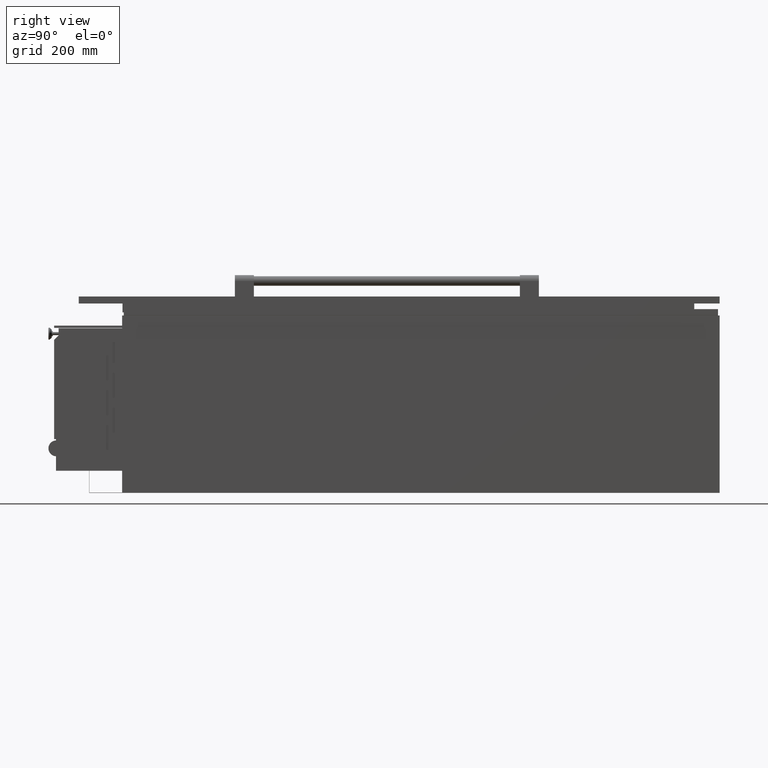
[diagram: clean part render]
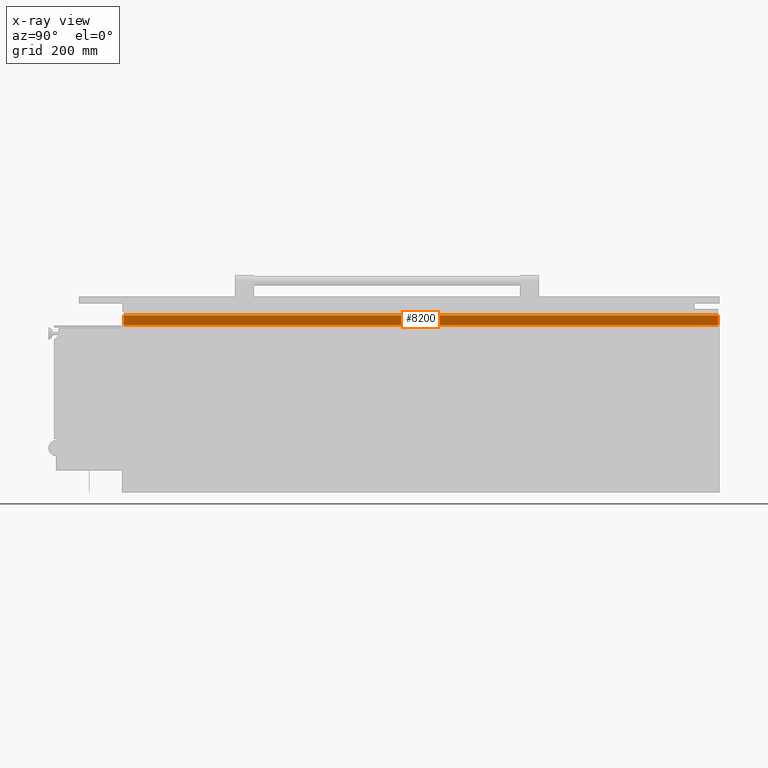
[diagram: x-ray — body ghosted, one internal face saturated and labeled with its STEP entity id]
A machine part, right view, then the same camera in x-ray: the body is ghosted and one INTERNAL B-rep face — a face not visible from any outside direction — is saturated and labeled: STEP entity #8200.
In plain terms, the highlighted planar face has unit normal (1, 0, -0).
Its self-contained STEP definition (entity closure, byte-faithful):
#49 = EDGE_LOOP ( 'NONE', ( #1140, #10283, #2435, #6516 ) ) ;
#118 = VERTEX_POINT ( 'NONE', #5787 ) ;
#387 = CARTESIAN_POINT ( 'NONE',  ( 892.4999999999998900, 1045.850000000000100, 280.4999999500001900 ) ) ;
#749 = LINE ( 'NONE', #4729, #3872 ) ;
#926 = EDGE_CURVE ( 'NONE', #7291, #8037, #2519, .T. ) ;
#1140 = ORIENTED_EDGE ( 'NONE', *, *, #4836, .T. ) ;
#1764 = EDGE_CURVE ( 'NONE', #4132, #7291, #749, .T. ) ;
#2155 = VECTOR ( 'NONE', #2945, 1000.000000000000000 ) ;
#2164 = VECTOR ( 'NONE', #5609, 1000.000000000000000 ) ;
#2435 = ORIENTED_EDGE ( 'NONE', *, *, #926, .F. ) ;
#2519 = LINE ( 'NONE', #9141, #2155 ) ;
#2945 = DIRECTION ( 'NONE',  ( 0.0000000000000000000, 2.775557561562891400E-015, -1.000000000000000000 ) ) ;
#3206 = CARTESIAN_POINT ( 'NONE',  ( 892.4999999999998900, -831.1499999999994100, 250.0000030000001300 ) ) ;
#3528 = CARTESIAN_POINT ( 'NONE',  ( 892.4999999999998900, 1100.901327281558900, 250.0000030000001300 ) ) ;
#3872 = VECTOR ( 'NONE', #8683, 1000.000000000000000 ) ;
#4132 = VERTEX_POINT ( 'NONE', #387 ) ;
#4295 = LINE ( 'NONE', #3528, #7963 ) ;
#4665 = LINE ( 'NONE', #7923, #2164 ) ;
#4729 = CARTESIAN_POINT ( 'NONE',  ( 892.4999999999998900, 1100.901327281558900, 280.4999999500001900 ) ) ;
#4836 = EDGE_CURVE ( 'NONE', #4132, #118, #4665, .T. ) ;
#5081 = CARTESIAN_POINT ( 'NONE',  ( 892.4999999999998900, -831.1499999999995200, 280.4999999500001900 ) ) ;
#5404 = DIRECTION ( 'NONE',  ( 1.000000000000000000, 0.0000000000000000000, -0.0000000000000000000 ) ) ;
#5469 = CARTESIAN_POINT ( 'NONE',  ( 892.4999999999998900, 1100.901327281558900, 250.0000030000001300 ) ) ;
#5609 = DIRECTION ( 'NONE',  ( 0.0000000000000000000, 0.0000000000000000000, -1.000000000000000000 ) ) ;
#5787 = CARTESIAN_POINT ( 'NONE',  ( 892.4999999999998900, 1045.850000000000100, 250.0000030000001300 ) ) ;
#6196 = DIRECTION ( 'NONE',  ( 0.0000000000000000000, 0.0000000000000000000, 1.000000000000000000 ) ) ;
#6389 = FACE_OUTER_BOUND ( 'NONE', #49, .T. ) ;
#6516 = ORIENTED_EDGE ( 'NONE', *, *, #1764, .F. ) ;
#7291 = VERTEX_POINT ( 'NONE', #5081 ) ;
#7711 = EDGE_CURVE ( 'NONE', #118, #8037, #4295, .T. ) ;
#7845 = PLANE ( 'NONE',  #9987 ) ;
#7923 = CARTESIAN_POINT ( 'NONE',  ( 892.4999999999998900, 1045.850000000000100, 250.0000030000001300 ) ) ;
#7963 = VECTOR ( 'NONE', #9871, 1000.000000000000000 ) ;
#8037 = VERTEX_POINT ( 'NONE', #3206 ) ;
#8200 = ADVANCED_FACE ( 'NONE', ( #6389 ), #7845, .F. ) ;
#8683 = DIRECTION ( 'NONE',  ( 0.0000000000000000000, -1.000000000000000000, -0.0000000000000000000 ) ) ;
#9141 = CARTESIAN_POINT ( 'NONE',  ( 892.4999999999998900, -831.1499999999994100, 250.0000030000003100 ) ) ;
#9871 = DIRECTION ( 'NONE',  ( 0.0000000000000000000, -1.000000000000000000, -0.0000000000000000000 ) ) ;
#9987 = AXIS2_PLACEMENT_3D ( 'NONE', #5469, #5404, #6196 ) ;
#10283 = ORIENTED_EDGE ( 'NONE', *, *, #7711, .T. ) ;